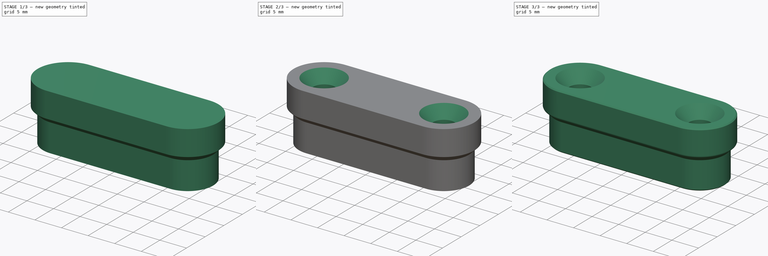
[diagram: build sequence overview — one tinted view per stage of 3, left to right]
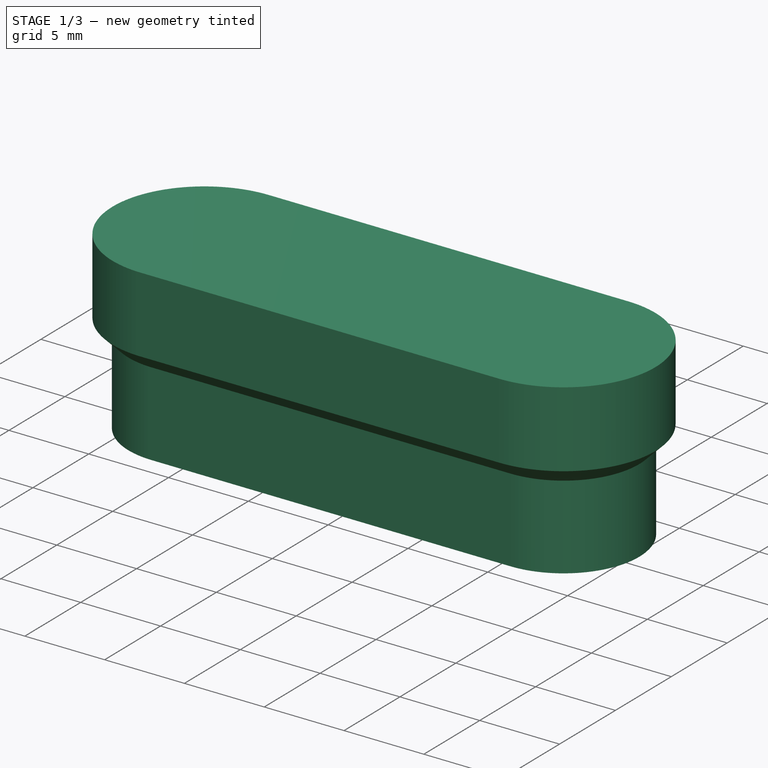
[diagram: stage 1 of 3 — iso view after this stage's code; geometry added in this stage tinted green]
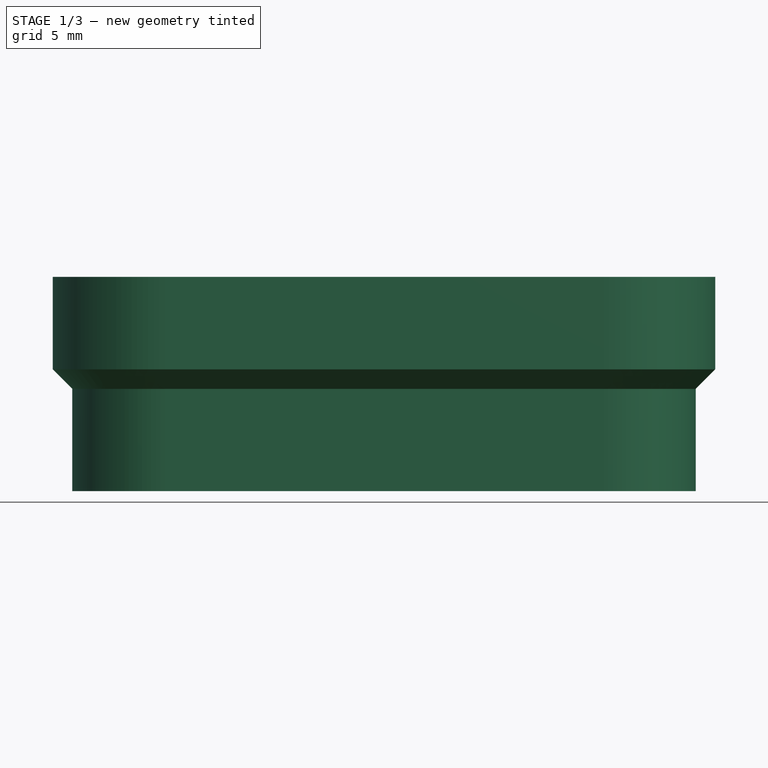
[diagram: stage 1 of 3 — front view after this stage's code; geometry added in this stage tinted green]
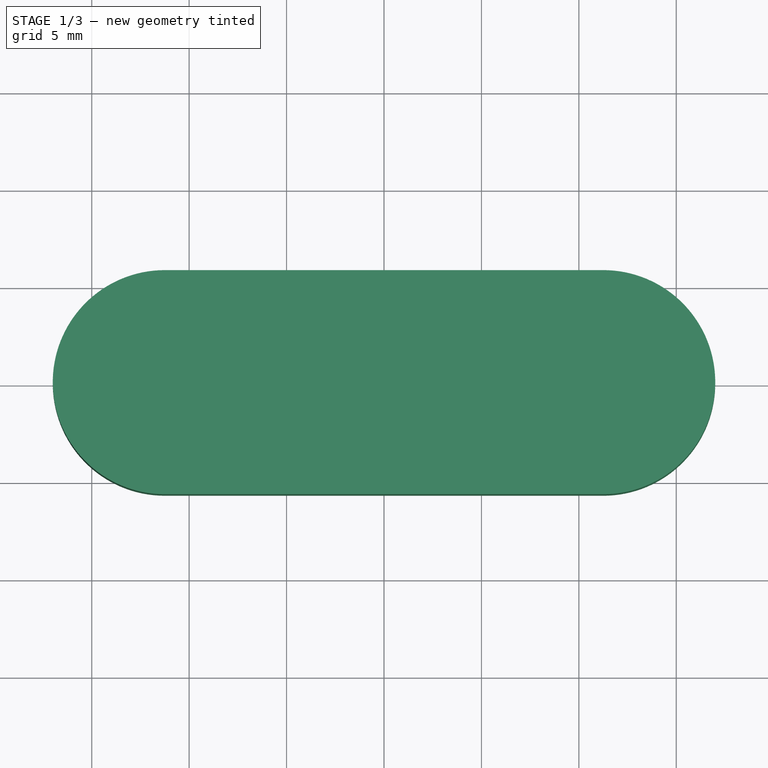
[diagram: stage 1 of 3 — top view after this stage's code; geometry added in this stage tinted green]
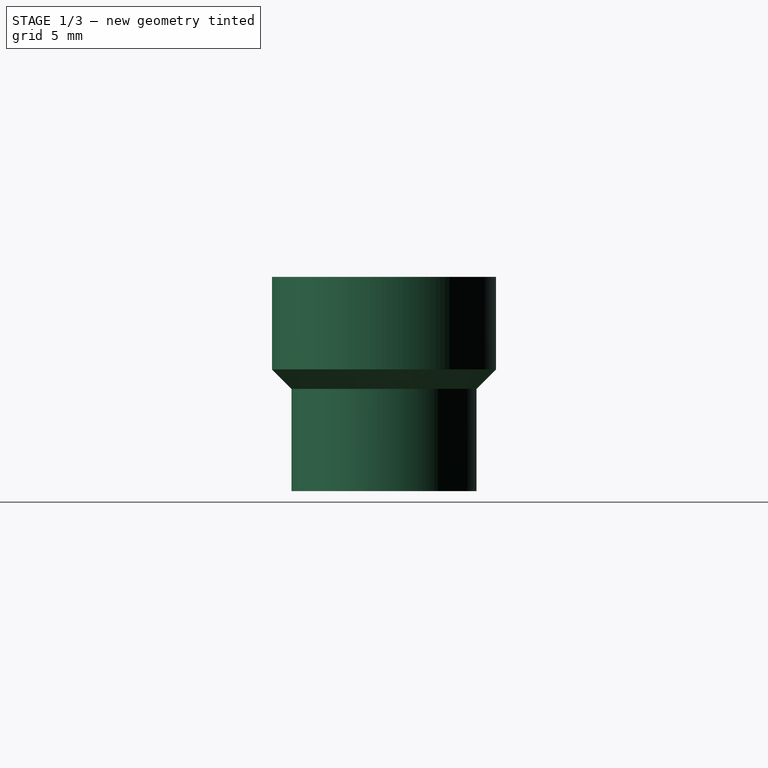
[diagram: stage 1 of 3 — right view after this stage's code; geometry added in this stage tinted green]
FCSTD DOCUMENT  (FreeCAD 0.22R38314 (Git))
Label: Slot_Guide
License: All rights reserved
LicenseURL: https://en.wikipedia.org/wiki/All_rights_reserved
objects: Sketcher::SketchObject×2, PartDesign::Chamfer×2, PartDesign::Pad×1, PartDesign::AdditivePipe×1, PartDesign::Hole×1, PartDesign::Body×1
note: 18 computed .brp shape members not serialized (recipe doc carries the construction recipe); baked Part::Feature solids carry a one-line shape summary decoded from their .brp

FEATURE [Sketcher::SketchObject] Sketch  label="Main_Sketch"
  AttachmentSupport = -> [XY_Plane]
  FullyConstrained = true
  MapMode = 5
  sketch-geometry (8):
    g0: ArcOfCircle CenterX=-11.25 CenterY=0 CenterZ=0 NormalX=0 NormalY=0 NormalZ=1 AngleXU=0 Radius=4.75 StartAngle=1.5708 EndAngle=4.71239
    g1: ArcOfCircle CenterX=11.25 CenterY=0 CenterZ=0 NormalX=0 NormalY=0 NormalZ=1 AngleXU=0 Radius=4.75 StartAngle=4.71239 EndAngle=7.85398
    g2: LineSegment StartX=-11.25 StartY=4.75 StartZ=0 EndX=11.25 EndY=4.75 EndZ=0
    g3: LineSegment StartX=-11.25 StartY=-4.75 StartZ=0 EndX=11.25 EndY=-4.75 EndZ=0
    g4: LineSegment StartX=-11.25 StartY=-4.75 StartZ=0 EndX=0 EndY=0 EndZ=0
    g5: LineSegment StartX=0 StartY=0 StartZ=0 EndX=11.25 EndY=4.75 EndZ=0
    g6: Circle CenterX=-11.25 CenterY=0 CenterZ=0 NormalX=0 NormalY=0 NormalZ=1 AngleXU=0 Radius=2.54
    g7: Circle CenterX=11.25 CenterY=0 CenterZ=0 NormalX=0 NormalY=0 NormalZ=1 AngleXU=0 Radius=2.54
  constraints (18):
    c: Tangent(g0,g2) = 1.5708
    c: Tangent(g0,g3) = -1.5708
    c: Tangent(g1,g2) = 1.5708
    c: Tangent(g1,g3) = -1.5708
    c: Equal(g0,g1)
    c: Horizontal(g3)
    c: PointOnObject(g0,g-1)
    c: Coincident(g4,g0)
    c: Coincident(g5,g4)
    c: Coincident(g5,g1)
    c: Parallel(g5,g4)
    c: Coincident(g4,g-1)
    c: DistanceY(g1,g1) = 9.5
    c: DistanceX(g0,g1) = 22.5
    c: Coincident(g6,g0)
    c: Coincident(g7,g1)
    c: Diameter(g6) = 5.08
    c: Equal(g7,g6)
FEATURE [PartDesign::Pad] Pad  label="Main_Pad"
  Direction = (0,0,1)
  Length = 11
  Length2 = 10
  Profile = -> Sketch
  ReferenceAxis = -> Sketch [N_Axis]
  Refine = true
  Suppressed = false
  Type = 0
FEATURE [Sketcher::SketchObject] Sketch001  label="Shoulder_Sketch"
  AttachmentSupport = -> [YZ_Plane]
  FullyConstrained = false
  MapMode = 5
  Placement = pos=(0,0,0) rot=(0.57735,0.57735,0.57735;2.0944rad)
  sketch-geometry (4):
    g0: LineSegment StartX=-4.75 StartY=11 StartZ=0 EndX=-5.75 EndY=11 EndZ=0
    g1: LineSegment StartX=-5.75 StartY=11 StartZ=0 EndX=-5.75 EndY=6.25 EndZ=0
    g2: LineSegment StartX=-5.75 StartY=6.25 StartZ=0 EndX=-4.75 EndY=5.25 EndZ=0
    g3: LineSegment StartX=-4.75 StartY=5.25 StartZ=0 EndX=-4.75 EndY=11 EndZ=0
  constraints (10):
    c: Horizontal(g0)
    c: Coincident(g1,g0)
    c: Vertical(g1)
    c: Coincident(g2,g1)
    c: Coincident(g3,g2)
    c: Coincident(g3,g0)
    c: Vertical(g3)
    c: DistanceY(g3,g3) = 5.75
    c: DistanceX(g0,g0) = 1
    c: Angle(g3,g2) = 0.785398
FEATURE [PartDesign::AdditivePipe] AdditivePipe  label="Shoulder_Pipe"
  AuxilleryCurvelinear = true
  AuxillerySpineTangent = false
  BaseFeature = -> Pad
  Binormal = (0,0,0)
  Mode = 0
  Profile = -> Sketch001
  Refine = true
  Spine = -> Pad [Edge7,Edge4,Edge12,Edge10]
  SpineTangent = false
  Suppressed = false
  Transformation = 0
  Transition = 0
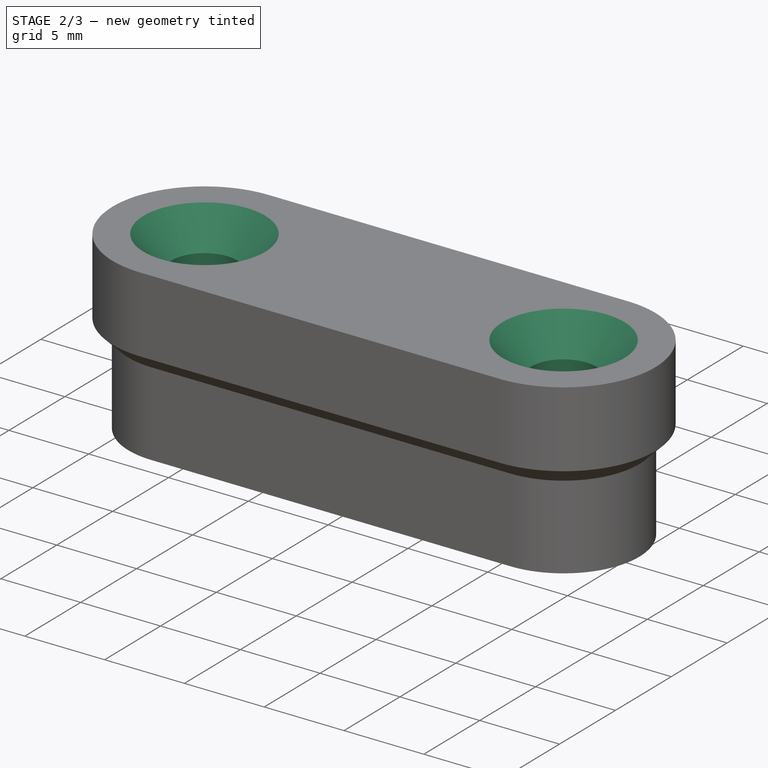
[diagram: stage 2 of 3 — iso view after this stage's code; geometry added in this stage tinted green]
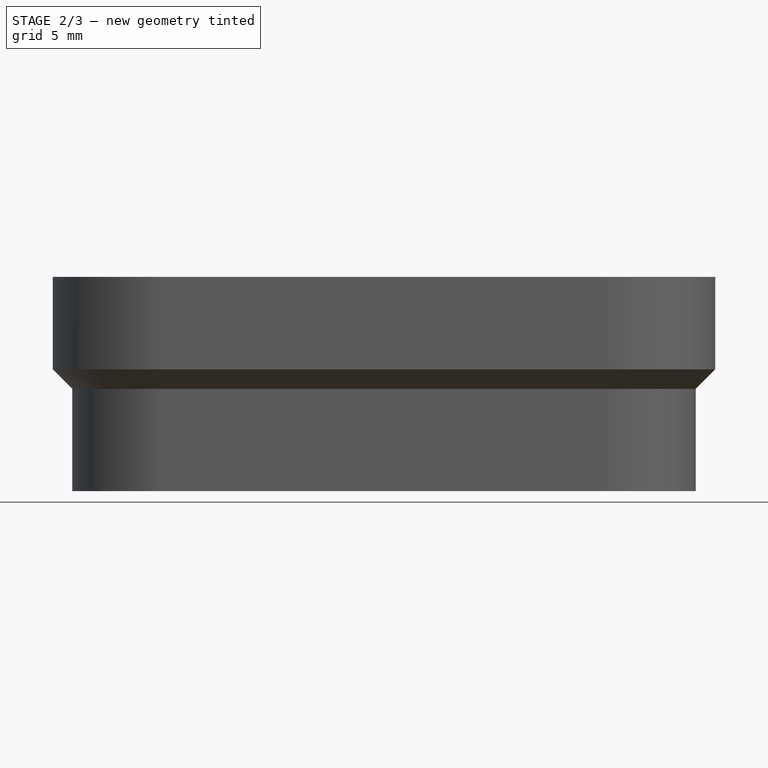
[diagram: stage 2 of 3 — front view after this stage's code; geometry added in this stage tinted green]
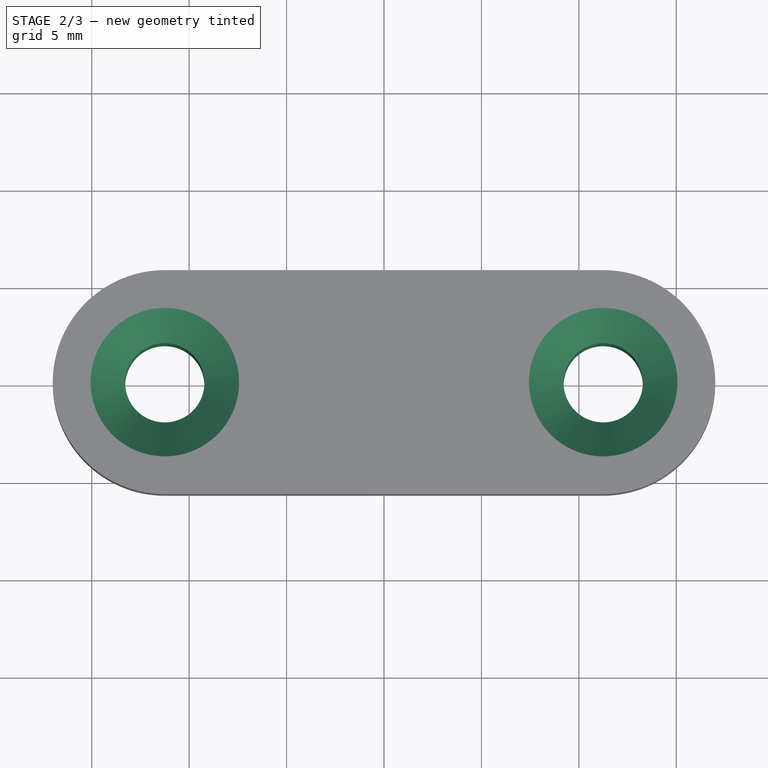
[diagram: stage 2 of 3 — top view after this stage's code; geometry added in this stage tinted green]
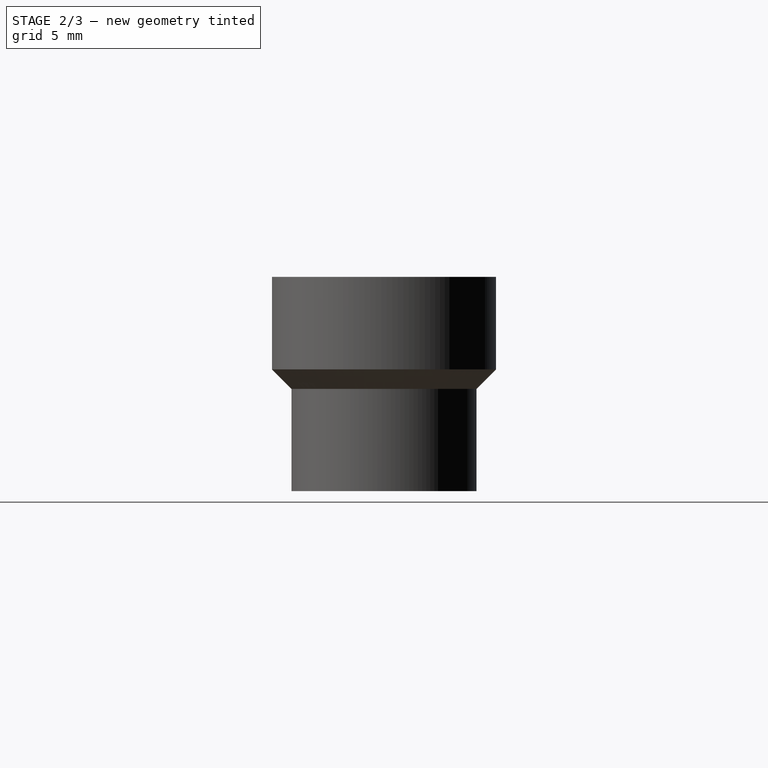
[diagram: stage 2 of 3 — right view after this stage's code; geometry added in this stage tinted green]
FEATURE [PartDesign::Hole] Hole  label="Screw Holes"
  BaseFeature = -> AdditivePipe
  CustomThreadClearance = 0
  Depth = 25
  DepthType = 0
  Diameter = 4.064
  DrillForDepth = false
  DrillPoint = 1
  DrillPointAngle = 118
  HoleCutCountersinkAngle = 82
  HoleCutCustomValues = false
  HoleCutDepth = 0
  HoleCutDiameter = 7.62
  HoleCutType = 2
  ModelThread = false
  Profile = -> AdditivePipe [Face14]
  Refine = true
  Suppressed = false
  Tapered = false
  TaperedAngle = 90
  ThreadClass = 0
  ThreadDepth = 25
  ThreadDepthType = 0
  ThreadDirection = 0
  ThreadFit = 0
  ThreadSize = 0
  ThreadType = 0
  Threaded = false
  UseCustomThreadClearance = false
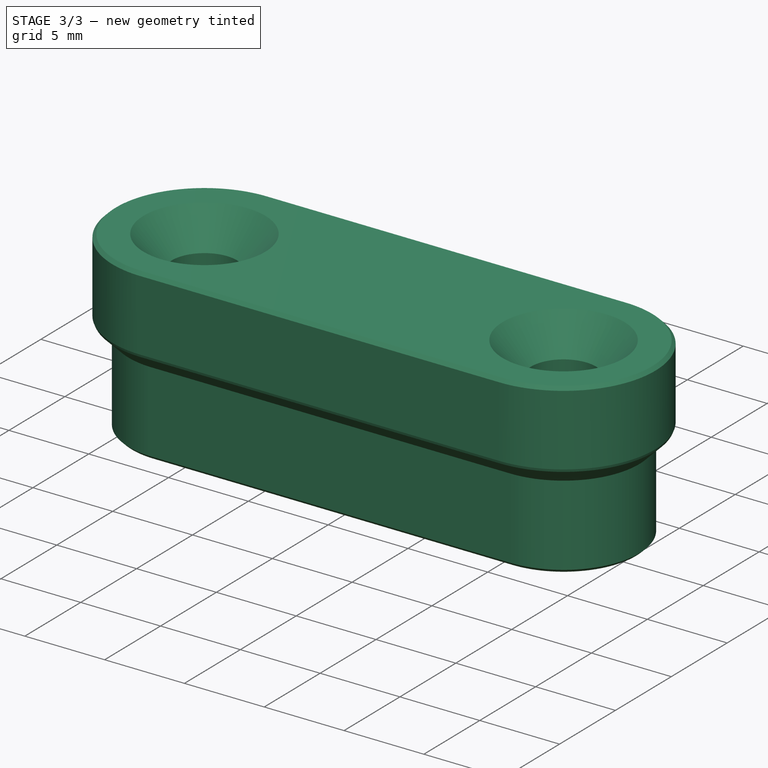
[diagram: stage 3 of 3 — iso view after this stage's code; geometry added in this stage tinted green]
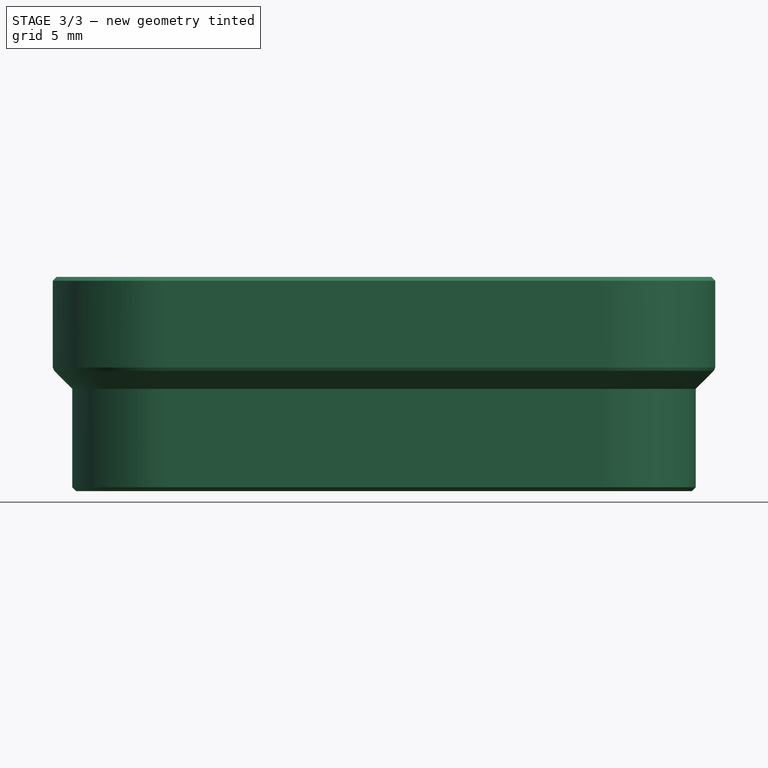
[diagram: stage 3 of 3 — front view after this stage's code; geometry added in this stage tinted green]
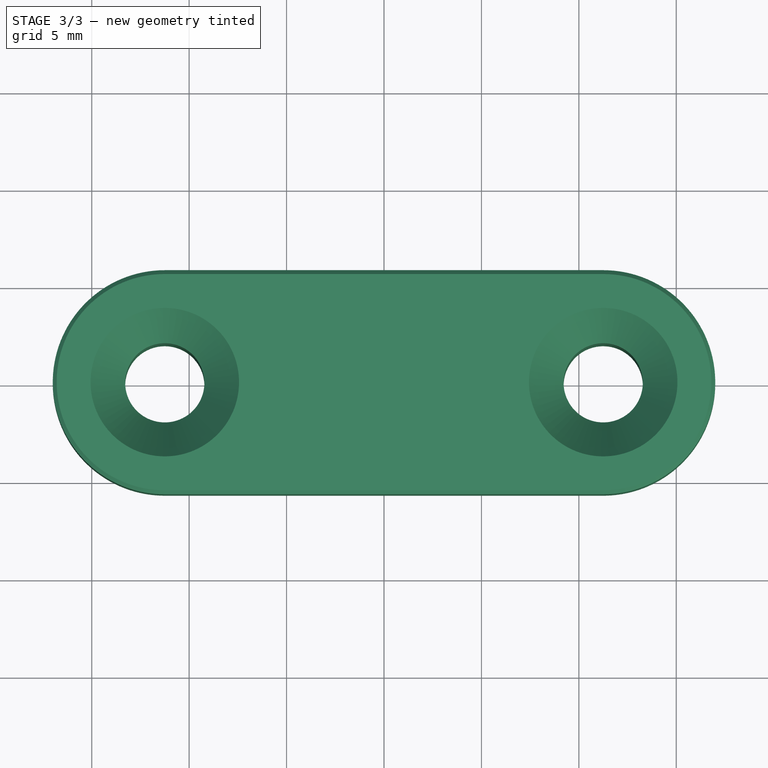
[diagram: stage 3 of 3 — top view after this stage's code; geometry added in this stage tinted green]
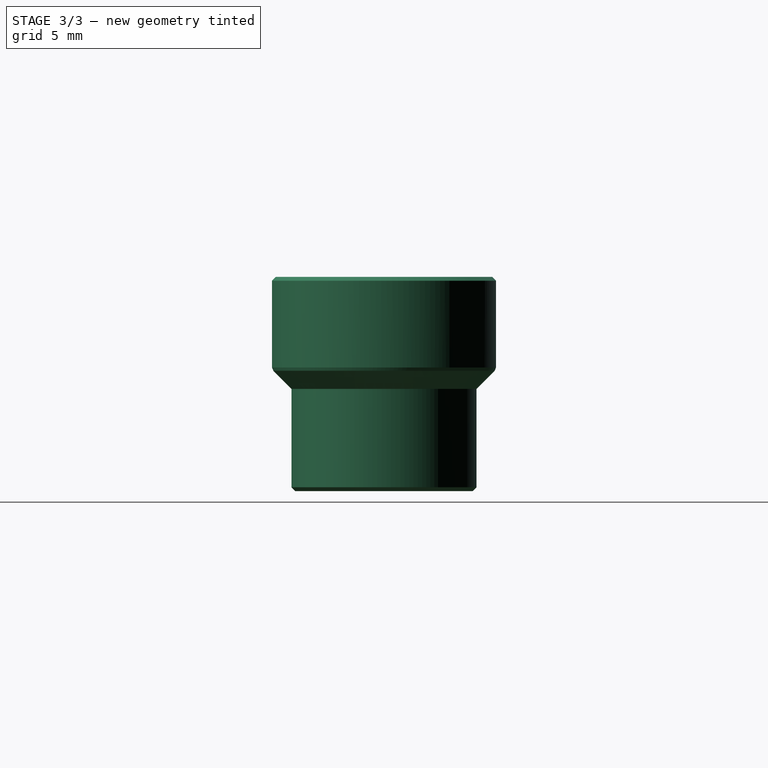
[diagram: stage 3 of 3 — right view after this stage's code; geometry added in this stage tinted green]
FEATURE [PartDesign::Chamfer] Chamfer  label="Top_Bottom_Chamfer"
  Angle = 45
  Base = -> Hole [Edge5,Edge7,Edge37,Edge36,Edge1,Edge24,Edge6,Edge34]
  BaseFeature = -> Hole
  ChamferType = 0
  FlipDirection = false
  Refine = true
  Size = 0.2
  Size2 = 1
  SupportTransform = false
  Suppressed = false
  UseAllEdges = false
FEATURE [PartDesign::Chamfer] Chamfer001  label="Shoulder_Chamfer"
  Angle = 45
  Base = -> Chamfer [Edge21,Edge11,Edge33,Edge31]
  BaseFeature = -> Chamfer
  ChamferType = 0
  FlipDirection = false
  Refine = true
  Size = 0.1
  Size2 = 1
  SupportTransform = false
  Suppressed = false
  UseAllEdges = false
FEATURE [PartDesign::Body] Body
  AllowCompound = false
  Group = -> [Sketch,Pad,Sketch001,AdditivePipe,Hole,Chamfer,Chamfer001]
  Origin = -> Origin
  Tip = -> Chamfer001
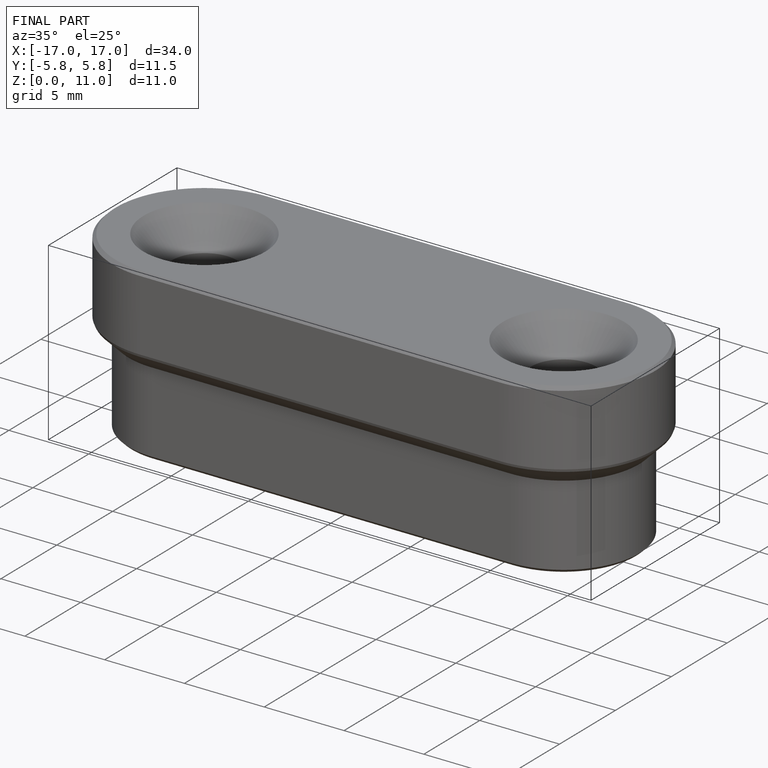
[diagram: finished part — iso view with bounding-box wireframe]
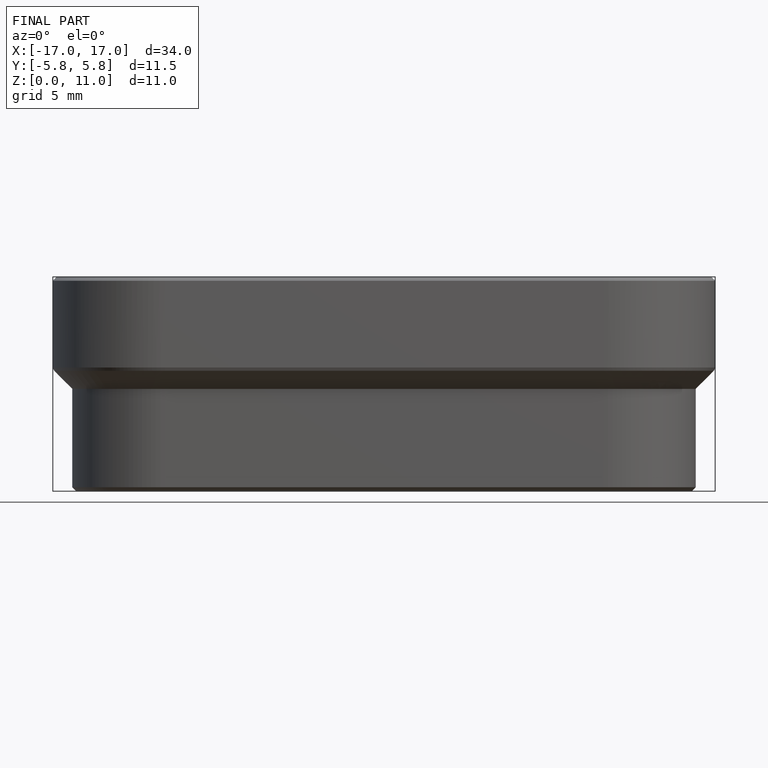
[diagram: finished part — front view with bounding-box wireframe]
